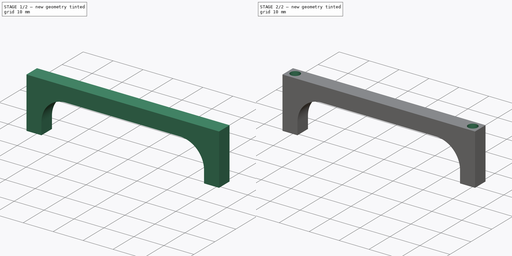
[diagram: build sequence overview — one tinted view per stage of 2, left to right]
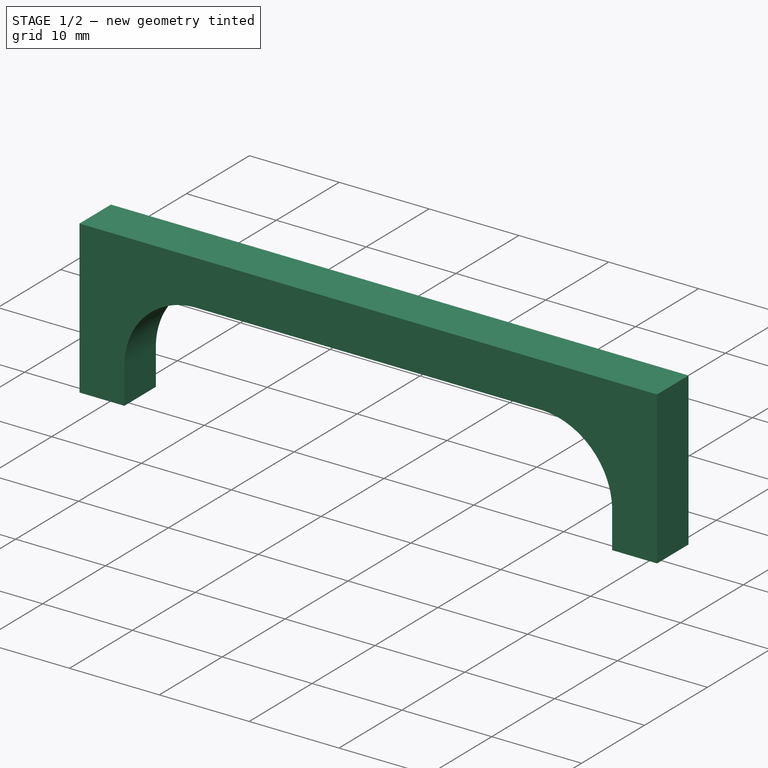
[diagram: stage 1 of 2 — iso view after this stage's code; geometry added in this stage tinted green]
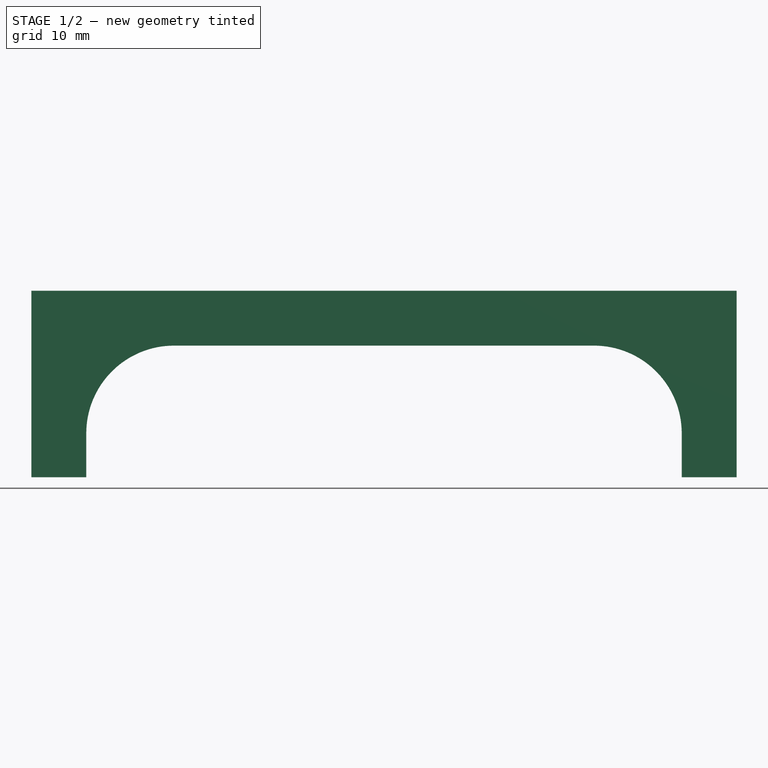
[diagram: stage 1 of 2 — front view after this stage's code; geometry added in this stage tinted green]
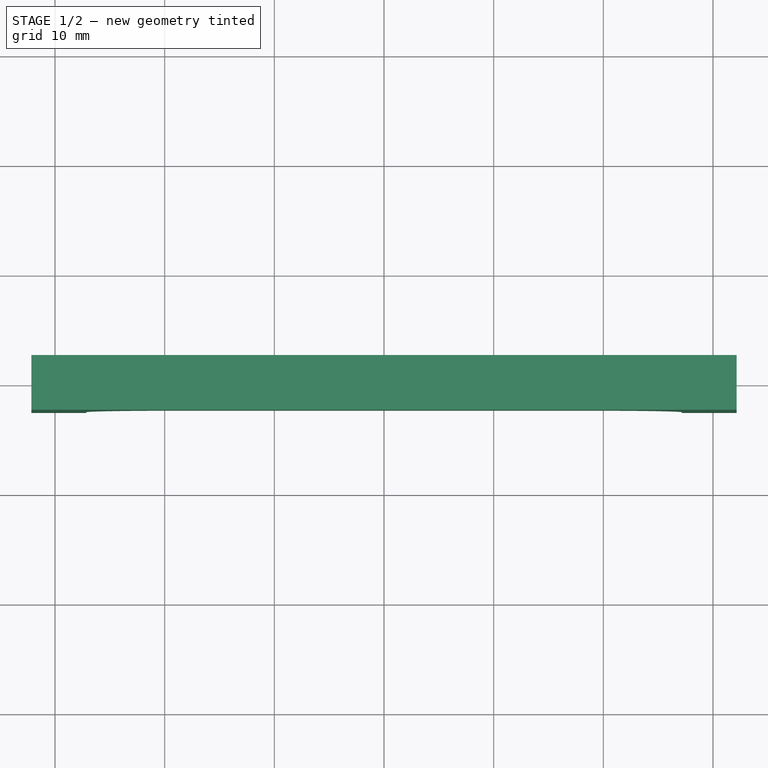
[diagram: stage 1 of 2 — top view after this stage's code; geometry added in this stage tinted green]
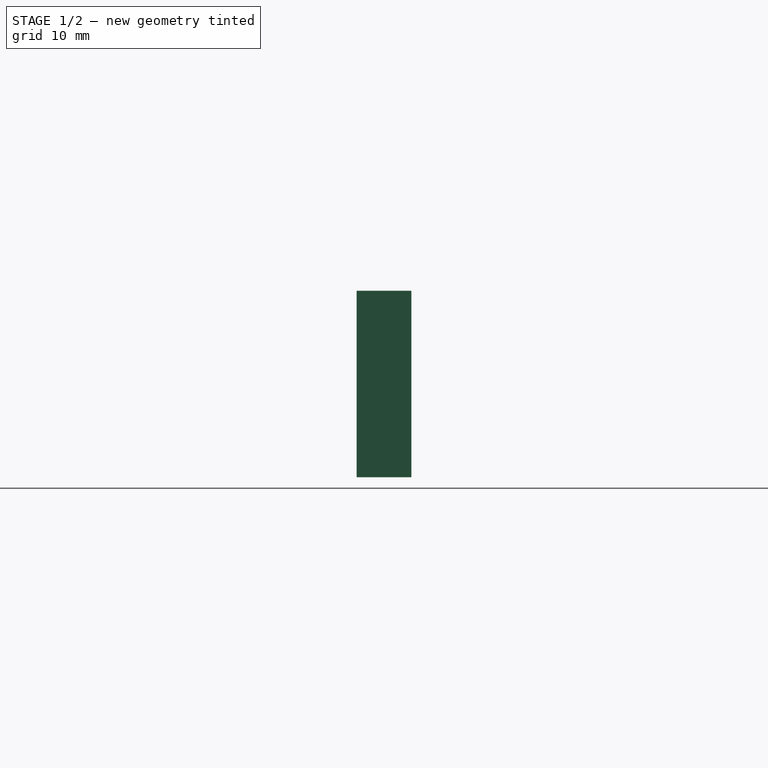
[diagram: stage 1 of 2 — right view after this stage's code; geometry added in this stage tinted green]
FCSTD DOCUMENT  (FreeCAD 0.18R14090 (Git))
Label: ZEndStopClip2
License: All rights reserved
LicenseURL: http://en.wikipedia.org/wiki/All_rights_reserved
objects: Sketcher::SketchObject×2, PartDesign::Pad×1, PartDesign::Pocket×1, PartDesign::Body×1, App::Part×1
note: 7 computed .brp shape members not serialized (recipe doc carries the construction recipe); baked Part::Feature solids carry a one-line shape summary decoded from their .brp

FEATURE [Sketcher::SketchObject] Sketch  label="BaseSketch"
  MapMode = 5
  Placement = pos=(0,0,0) rot=(1,0,0;1.5708rad)
  Support = -> [XZ_Plane001]
  sketch-geometry (17):
    g0: ArcOfCircle CenterX=-19.15 CenterY=4 CenterZ=0 NormalX=0 NormalY=0 NormalZ=1 AngleXU=0 Radius=8 StartAngle=1.5708 EndAngle=3.14159
    g1: ArcOfCircle CenterX=19.15 CenterY=4 CenterZ=0 NormalX=0 NormalY=0 NormalZ=1 AngleXU=0 Radius=8 StartAngle=0 EndAngle=1.5708
    g2: LineSegment StartX=-27.15 StartY=0 StartZ=0 EndX=-27.15 EndY=4 EndZ=0
    g3: LineSegment StartX=27.15 StartY=0 StartZ=0 EndX=27.15 EndY=4 EndZ=0
    g4: LineSegment [constr] StartX=27.15 StartY=4 StartZ=0 EndX=32.15 EndY=4 EndZ=0
    g5: LineSegment [constr] StartX=-19.15 StartY=4 StartZ=0 EndX=-27.15 EndY=4 EndZ=0
    g6: LineSegment [constr] StartX=19.15 StartY=4 StartZ=0 EndX=27.15 EndY=4 EndZ=0
    g7: LineSegment [constr] StartX=19.15 StartY=12 StartZ=0 EndX=19.15 EndY=4 EndZ=0
    g8: LineSegment [constr] StartX=-19.15 StartY=12 StartZ=0 EndX=-19.15 EndY=4 EndZ=0
    g9: LineSegment StartX=32.15 StartY=0 StartZ=0 EndX=32.15 EndY=17 EndZ=0
    g10: LineSegment StartX=-32.15 StartY=0 StartZ=0 EndX=-32.15 EndY=17 EndZ=0
    g11: LineSegment StartX=-32.15 StartY=17 StartZ=0 EndX=32.15 EndY=17 EndZ=0
    g12: LineSegment StartX=-19.15 StartY=12 StartZ=0 EndX=19.15 EndY=12 EndZ=0
    g13: LineSegment [constr] StartX=-27.15 StartY=4 StartZ=0 EndX=-32.15 EndY=4 EndZ=0
    g14: LineSegment [constr] StartX=-19.15 StartY=12 StartZ=0 EndX=-19.15 EndY=17 EndZ=0
    g15: LineSegment StartX=-27.15 StartY=0 StartZ=0 EndX=-32.15 EndY=0 EndZ=0
    g16: LineSegment StartX=27.15 StartY=0 StartZ=0 EndX=32.15 EndY=0 EndZ=0
  constraints (48):
    c: PointOnObject(g2,g-1)
    c: Symmetric(g3,g2,g-2)
    c: Coincident(g2,g0)
    c: Vertical(g2)
    c: Coincident(g3,g1)
    c: Vertical(g3)
    c: Equal(g2,g3)
    c: Coincident(g4,g1)
    c: Horizontal(g4)
    c: Coincident(g5,g0)
    c: Coincident(g5,g0)
    c: Coincident(g6,g1)
    c: Coincident(g6,g1)
    c: Horizontal(g6)
    c: Horizontal(g5)
    c: Equal(g5,g6)
    c: Angle(g1) = 1.5708
    c: Distance(g3) = 4
    c: Coincident(g7,g1)
    c: Coincident(g7,g1)
    c: Coincident(g8,g0)
    c: Coincident(g8,g0)
    c: Distance(g5) = 8
    c: Angle(g0) = 1.5708
    c: PointOnObject(g9,g-1)
    c: Vertical(g9)
    c: PointOnObject(g10,g-1)
    c: Vertical(g10)
    c: Coincident(g11,g10)
    c: Coincident(g11,g9)
    c: Coincident(g12,g0)
    c: Coincident(g12,g1)
    c: Horizontal(g11)
    c: PointOnObject(g4,g9)
    c: Distance(g4) = 5
    c: Coincident(g13,g0)
    c: PointOnObject(g13,g10)
    c: Horizontal(g13)
    c: Equal(g4,g13)
    c: Coincident(g14,g0)
    c: PointOnObject(g14,g11)
    c: Vertical(g14)
    c: Equal(g14,g13)
    c: Coincident(g15,g2)
    c: Coincident(g15,g10)
    c: Coincident(g16,g3)
    c: Coincident(g16,g9)
    c: Distance(g12) = 38.3
FEATURE [PartDesign::Pad] Pad  label="BasePad"
  Length = 5
  Length2 = 100
  Midplane = true
  Placement = pos=(0,0,0) rot=(1,0,0;1.5708rad)
  Profile = -> Sketch
  Type = 0
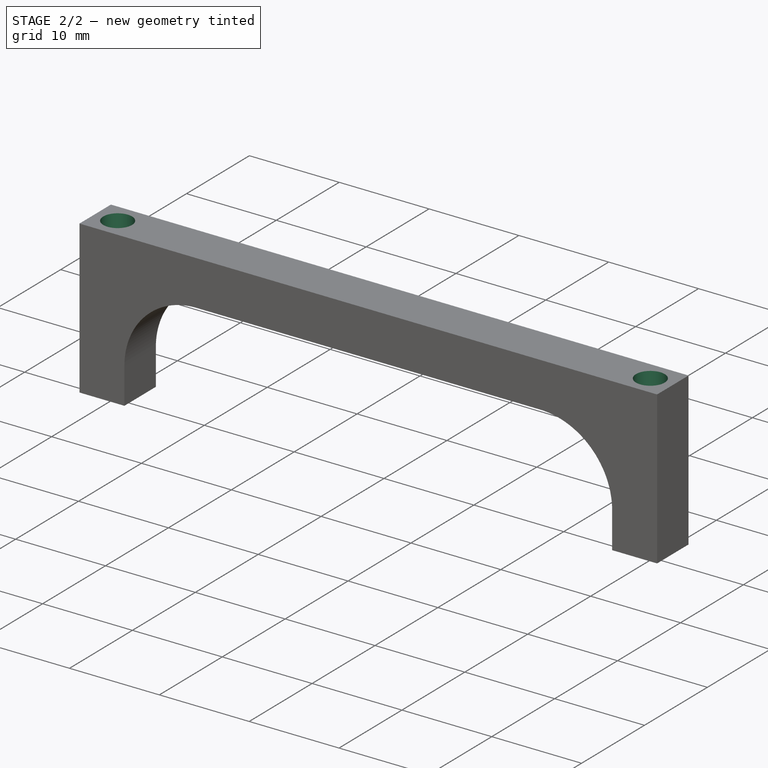
[diagram: stage 2 of 2 — iso view after this stage's code; geometry added in this stage tinted green]
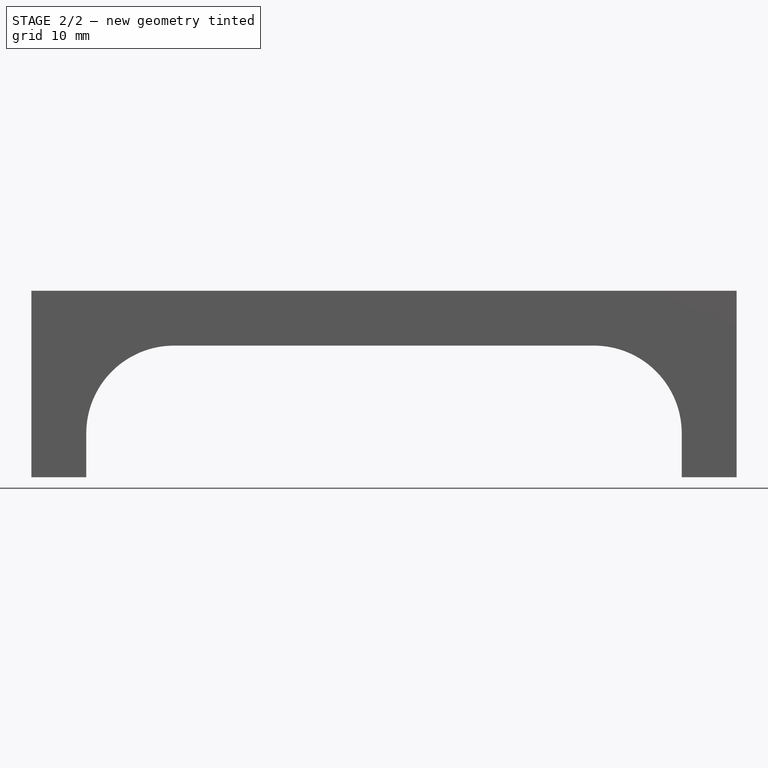
[diagram: stage 2 of 2 — front view after this stage's code; geometry added in this stage tinted green]
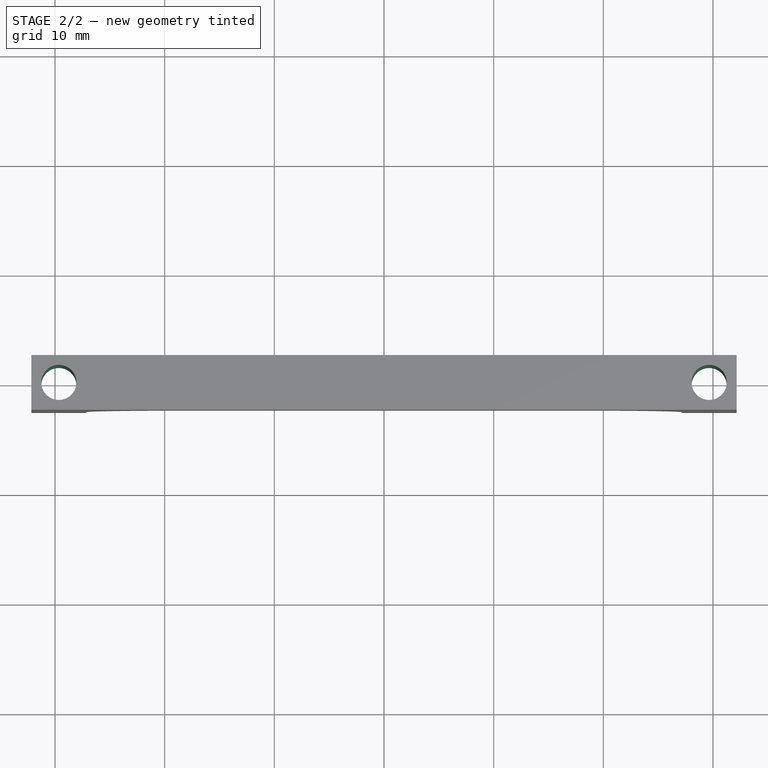
[diagram: stage 2 of 2 — top view after this stage's code; geometry added in this stage tinted green]
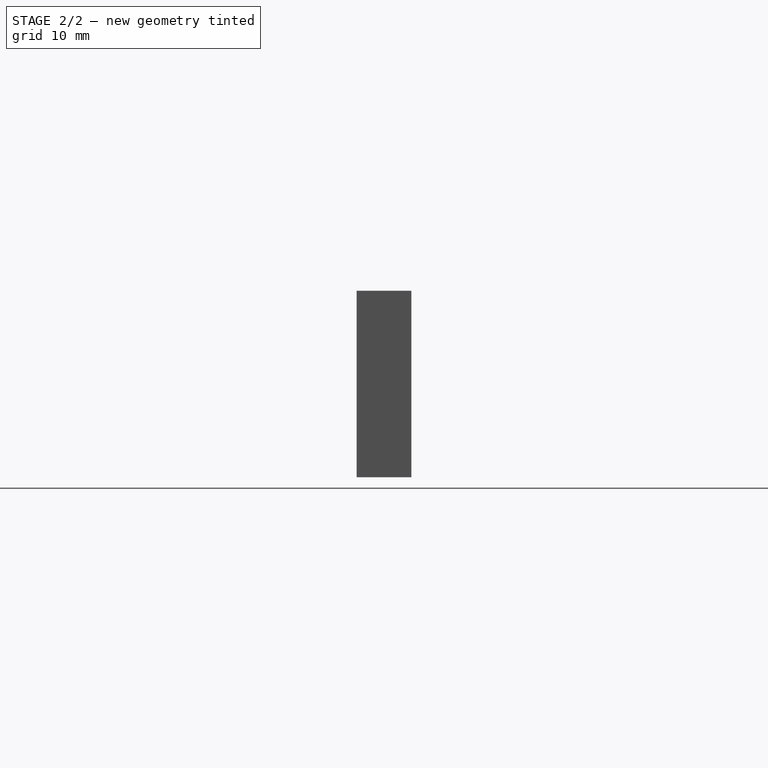
[diagram: stage 2 of 2 — right view after this stage's code; geometry added in this stage tinted green]
FEATURE [Sketcher::SketchObject] Sketch001  label="ClipHolesSketch"
  ExternalGeometry = -> [Sketch]
  MapMode = 5
  Support = -> [XY_Plane001]
  sketch-geometry (4):
    g0: LineSegment [constr] StartX=-27.15 StartY=0 StartZ=0 EndX=-29.65 EndY=0 EndZ=0
    g1: LineSegment [constr] StartX=-29.65 StartY=0 StartZ=0 EndX=-32.15 EndY=-1e-12 EndZ=0
    g2: Circle CenterX=-29.65 CenterY=0 CenterZ=0 NormalX=0 NormalY=0 NormalZ=1 AngleXU=0 Radius=1.6
    g3: Circle CenterX=29.65 CenterY=0 CenterZ=0 NormalX=0 NormalY=0 NormalZ=1 AngleXU=0 Radius=1.6
  constraints (9):
    c: Coincident(g0,g-4)
    c: Coincident(g1,g0)
    c: Coincident(g1,g-3)
    c: Equal(g1,g0)
    c: PointOnObject(g0,g-1)
    c: Coincident(g2,g0)
    c: Symmetric(g2,g3,g-2)
    c: Equal(g2,g3)
    c: Radius(g2) = 1.6
FEATURE [PartDesign::Pocket] Pocket  label="ClipHolesPocket"
  BaseFeature = -> Pad
  Length = 5
  Length2 = 100
  Placement = pos=(0,0,0) rot=(1,0,0;1.5708rad)
  Profile = -> Sketch001
  Reversed = true
  Type = 1
FEATURE [PartDesign::Body] Body  label="ZEndStopBody"
  Group = -> [Sketch,Pad,Sketch001,Pocket]
  Origin = -> Origin001
  Tip = -> Pocket
FEATURE [App::Part] Part  label="ZEndStopPart"
  Group = -> [Body]
  License = CC BY 3.0
  LicenseURL = http://creativecommons.org/licenses/by/3.0/
  Origin = -> Origin
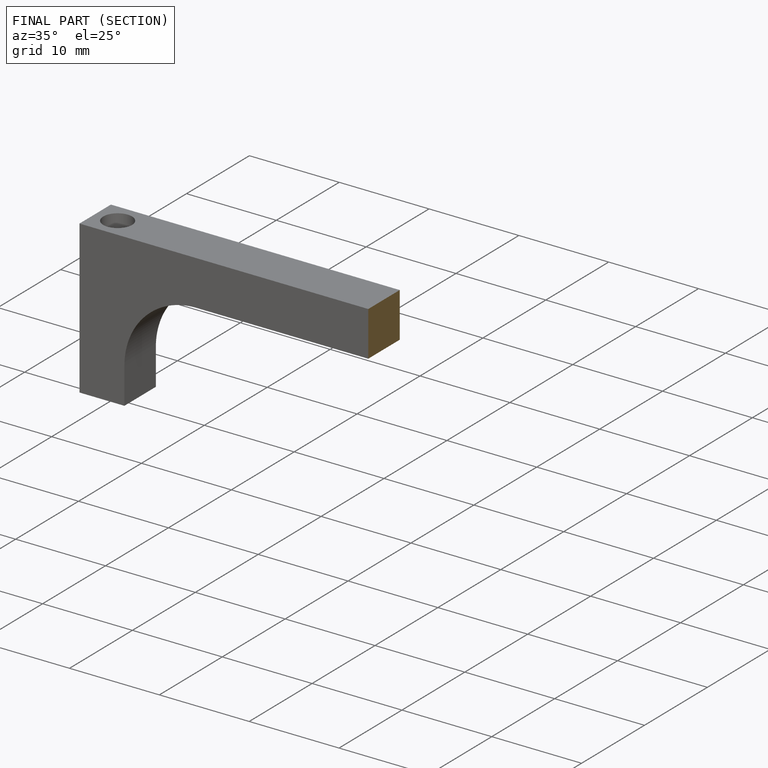
[diagram: finished part — half-section view (interior)]
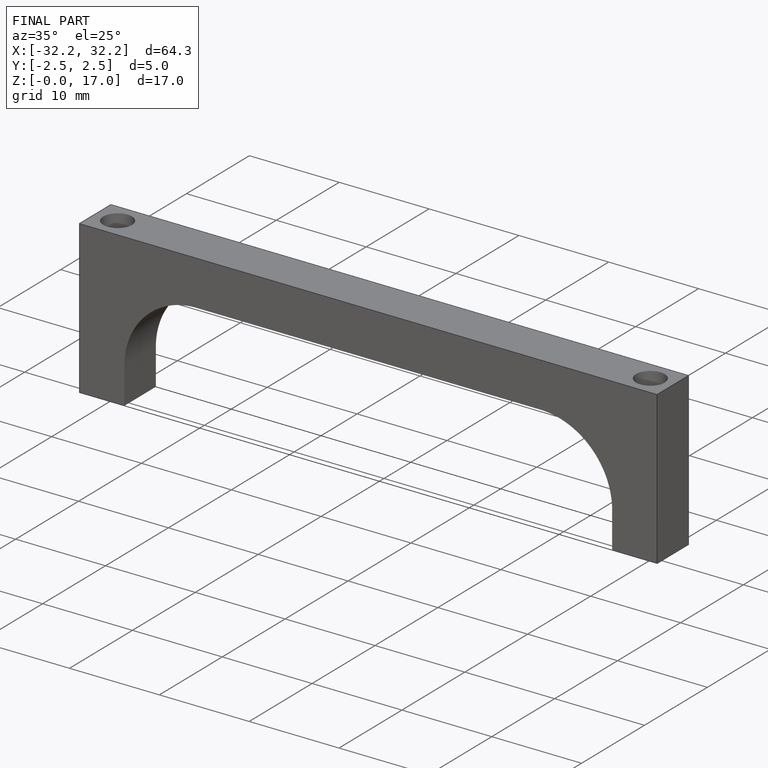
[diagram: finished part — iso view with bounding-box wireframe]
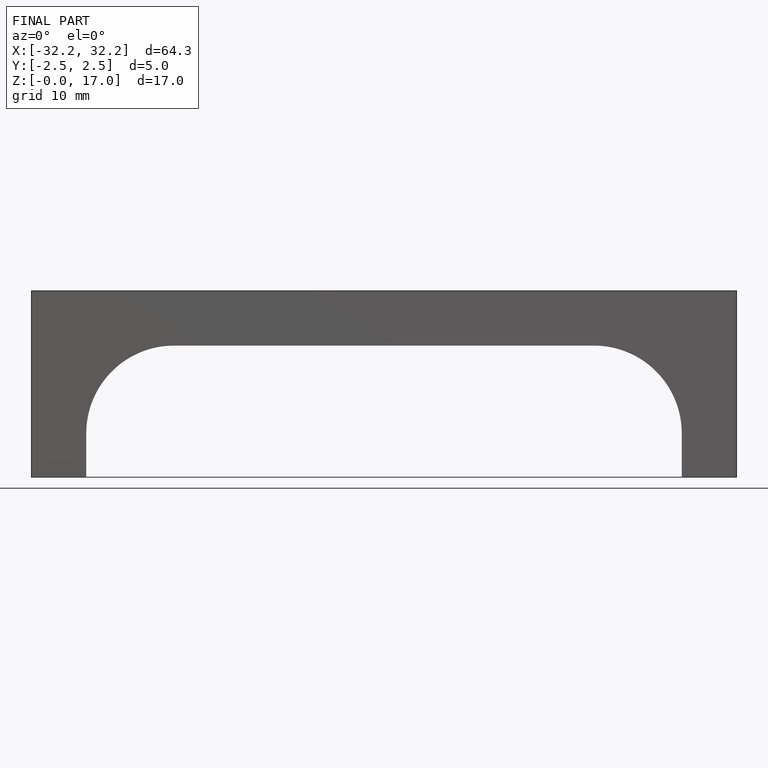
[diagram: finished part — front view with bounding-box wireframe]
